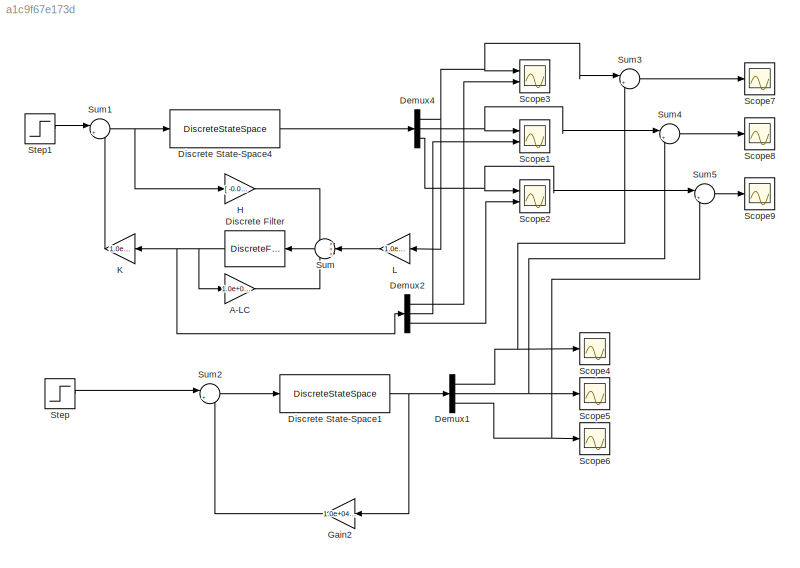
MODEL slx_a1c9f67e173d
KIND model
CONFIG AbsTol = auto
CONFIG EnableMultiTasking = off
CONFIG FixedStep = auto
CONFIG MaxStep = auto
CONFIG MinStep = auto
CONFIG RelTol = 1e-3
CONFIG SampleTimeConstraint = Unconstrained
CONFIG SolverName = VariableStepAuto
CONFIG StartTime = 0.0
CONFIG StopTime = 200
BLOCK [Gain] A-LC
  Gain = 1.0e+02 *[ -0.015127292849783  -0.211505575347728  -0.000006041895553\n ;  0.000737501490094   0.008824969025846   0.000000487045361\n;   2.852002205623906                   0   0.006302323823937]
  Multiplication = Matrix(K*u)
BLOCK [Demux] Demux1
  Outputs = 3
  Ports = [1, 3]
BLOCK [Demux] Demux2
  Outputs = 3
  Ports = [1, 3]
BLOCK [Demux] Demux4
  Outputs = 3
  Ports = [1, 3]
BLOCK [DiscreteFilter] Discrete Filter
  Denominator = [ 1 0]
  InputPortMap = u0
  Numerator = [0 1]
  Ports = [1, 1]
  SampleTime = 5
BLOCK [DiscreteStateSpace] Discrete State-Space1
  A = [ 1.000000000000000 -21.150557534772830  -0.000604189555321\n         ;          0   0.882496902584595   0.000048704536076\n          ;         0                   0   0.630232382393690]
  B = [  -0.000088014915701\n ;  0.000011188695469\n ;  0.333725286648294]
  C = [1 0 0; 0 1 0 ; 0 0 1]
  D = [0;0;0]
  InitialCondition = 10
  SampleTime = 5
BLOCK [DiscreteStateSpace] Discrete State-Space4
  A = [1.000000000000000 -21.150557534772830  -0.000604189555321\n       ;            0   0.882496902584595   0.000048704536076\n            ;       0                   0   0.630232382393690]
  B = [  -0.000088014915701\n ;  0.000011188695469\n ;  0.333725286648294]
  C = [1 0 0; 0 1 0 ; 0 0 1]
  D = [0;0;0]
  InitialCondition = 1
  SampleTime = 5
BLOCK [Gain] Gain2
  Gain = 1.0e+04 *[\n\n   -0.217959452645970  8.571244823702385  0.000408084742073]
  Multiplication = Matrix(K*u)
BLOCK [Gain] H
  Gain = [  -0.000088014915701\n ;  0.000011188695469\n  ; 0.333725286648294]
  Multiplication = Matrix(K*u)
BLOCK [Gain] K
  Gain = 1.0e+04 *[\n\n   0.217959452645970  -8.571244823702385  -0.000408084742073]
  Multiplication = Matrix(K*u)
BLOCK [Gain] L
  Gain = 1.0e+02 *[\n\n   0.025127292849783\n  -0.000737501490094\n  -2.852002205623906]
  Multiplication = Matrix(K*u)
BLOCK [Scope] Scope1
  Floating = off
  NumInputPorts = 2
  Ports = [2]
  ScopeSpecificationString = Simulink.scopes.TimeScopeBlockCfg('CurrentConfiguration', extmgr.ConfigurationSet(extmgr.Configuration('Core','General UI',true),extmgr.Configuration('Core','Source UI',true),extmgr.Configuration('Sources','WiredSimulink',true),extmgr.Configuration('Visuals','Time Domain',true,'SerializedDisplays',{struct('MinYLimReal','-2.95969','MaxYLimReal','2.25944','YLabelReal','','MinYLimMag','0.00000','MaxY...<+1367ch>
BLOCK [Scope] Scope2
  Floating = off
  NumInputPorts = 2
  Ports = [2]
  ScopeSpecificationString = Simulink.scopes.TimeScopeBlockCfg('CurrentConfiguration', extmgr.ConfigurationSet(extmgr.Configuration('Core','General UI',true),extmgr.Configuration('Core','Source UI',true),extmgr.Configuration('Sources','WiredSimulink',true,'DataLoggingVariableName','ScopeData1'),extmgr.Configuration('Visuals','Time Domain',true,'SerializedDisplays',{struct('MinYLimReal','-127908.24136','MaxYLimReal','145285.53...<+1445ch>
BLOCK [Scope] Scope3
  Floating = off
  NumInputPorts = 2
  Ports = [2]
  ScopeSpecificationString = Simulink.scopes.TimeScopeBlockCfg('CurrentConfiguration', extmgr.ConfigurationSet(extmgr.Configuration('Core','General UI',true),extmgr.Configuration('Core','Source UI',true),extmgr.Configuration('Sources','WiredSimulink',true,'DataLoggingVariableName','ScopeData2'),extmgr.Configuration('Visuals','Time Domain',true,'SerializedDisplays',{struct('MinYLimReal','-64.27986','MaxYLimReal','40.07317','YL...<+1413ch>
BLOCK [Scope] Scope4
  Floating = off
  NumInputPorts = 1
  Ports = [1]
  ScopeSpecificationString = Simulink.scopes.TimeScopeBlockCfg('CurrentConfiguration', extmgr.ConfigurationSet(extmgr.Configuration('Core','General UI',true),extmgr.Configuration('Core','Source UI',true),extmgr.Configuration('Sources','WiredSimulink',true,'DataLoggingVariableName','ScopeData1'),extmgr.Configuration('Visuals','Time Domain',true,'SerializedDisplays',{struct('MinYLimReal','-145.23509','MaxYLimReal','27.24834','Y...<+1379ch>
BLOCK [Scope] Scope5
  Floating = off
  NumInputPorts = 1
  Ports = [1]
  ScopeSpecificationString = Simulink.scopes.TimeScopeBlockCfg('CurrentConfiguration', extmgr.ConfigurationSet(extmgr.Configuration('Core','General UI',true),extmgr.Configuration('Core','Source UI',true),extmgr.Configuration('Sources','WiredSimulink',true,'DataLoggingVariableName','ScopeData2'),extmgr.Configuration('Visuals','Time Domain',true,'SerializedDisplays',{struct('MinYLimReal','-5.6715','MaxYLimReal','11.74128','YLab...<+1369ch>
BLOCK [Scope] Scope6
  Floating = off
  NumInputPorts = 1
  Ports = [1]
  ScopeSpecificationString = Simulink.scopes.TimeScopeBlockCfg('CurrentConfiguration', extmgr.ConfigurationSet(extmgr.Configuration('Core','General UI',true),extmgr.Configuration('Core','Source UI',true),extmgr.Configuration('Sources','WiredSimulink',true,'DataLoggingVariableName','ScopeData3'),extmgr.Configuration('Visuals','Time Domain',true,'SerializedDisplays',{struct('MinYLimReal','-329347.04403','MaxYLimReal','176351.01...<+1405ch>
BLOCK [Scope] Scope7
  Floating = off
  NumInputPorts = 1
  Ports = [1]
  ScopeSpecificationString = Simulink.scopes.TimeScopeBlockCfg('CurrentConfiguration', extmgr.ConfigurationSet(extmgr.Configuration('Core','General UI',true),extmgr.Configuration('Core','Source UI',true),extmgr.Configuration('Sources','WiredSimulink',true,'DataLoggingVariableName','ScopeData4'),extmgr.Configuration('Visuals','Time Domain',true,'SerializedDisplays',{struct('MinYLimReal','-52.70335','MaxYLimReal','125.67314','Y...<+1373ch>
BLOCK [Scope] Scope8
  Floating = off
  NumInputPorts = 1
  Ports = [1]
  ScopeSpecificationString = Simulink.scopes.TimeScopeBlockCfg('CurrentConfiguration', extmgr.ConfigurationSet(extmgr.Configuration('Core','General UI',true),extmgr.Configuration('Core','Source UI',true),extmgr.Configuration('Sources','WiredSimulink',true,'DataLoggingVariableName','ScopeData5'),extmgr.Configuration('Visuals','Time Domain',true,'SerializedDisplays',{struct('MinYLimReal','-10.73177','MaxYLimReal','6.5859','YLab...<+1365ch>
BLOCK [Scope] Scope9
  Floating = off
  NumInputPorts = 1
  Ports = [1]
  ScopeSpecificationString = Simulink.scopes.TimeScopeBlockCfg('CurrentConfiguration', extmgr.ConfigurationSet(extmgr.Configuration('Core','General UI',true),extmgr.Configuration('Core','Source UI',true),extmgr.Configuration('Sources','WiredSimulink',true,'DataLoggingVariableName','ScopeData6'),extmgr.Configuration('Visuals','Time Domain',true,'SerializedDisplays',{struct('MinYLimReal','-171484.5923','MaxYLimReal','328807.401...<+1399ch>
BLOCK [Step] Step
  SampleTime = 0
  Time = 0
BLOCK [Step] Step1
  SampleTime = 0
  Time = 0
BLOCK [Sum] Sum
  Inputs = +++
  Ports = [3, 1]
BLOCK [Sum] Sum1
  Inputs = |++
  Ports = [2, 1]
BLOCK [Sum] Sum2
  Inputs = |+-
  Ports = [2, 1]
BLOCK [Sum] Sum3
  Inputs = |+-
  Ports = [2, 1]
BLOCK [Sum] Sum4
  Inputs = |+-
  Ports = [2, 1]
BLOCK [Sum] Sum5
  Inputs = |+-
  Ports = [2, 1]
LINE A-LC:1 -> Sum:3
NET Demux1:1 -> Scope4:1, Sum3:2
NET Demux1:2 -> Scope5:1, Sum4:2
NET Demux1:3 -> Scope6:1, Sum5:2
LINE Demux2:1 -> Scope3:2
LINE Demux2:2 -> Scope1:2
LINE Demux2:3 -> Scope2:2
NET Demux4:1 -> L:1, Scope3:1, Sum3:1
NET Demux4:2 -> Scope1:1, Sum4:1
NET Demux4:3 -> Scope2:1, Sum5:1
NET Discrete Filter:1 -> A-LC:1, Demux2:1, K:1
NET Discrete State-Space1:1 -> Demux1:1, Gain2:1
LINE Discrete State-Space4:1 -> Demux4:1
LINE Gain2:1 -> Sum2:2
LINE H:1 -> Sum:1
LINE K:1 -> Sum1:2
LINE L:1 -> Sum:2
LINE Step1:1 -> Sum1:1
LINE Step:1 -> Sum2:1
NET Sum1:1 -> Discrete State-Space4:1, H:1
LINE Sum2:1 -> Discrete State-Space1:1
LINE Sum3:1 -> Scope7:1
LINE Sum4:1 -> Scope8:1
LINE Sum5:1 -> Scope9:1
LINE Sum:1 -> Discrete Filter:1
note: NET lines group one-source signal fan-out (src -> all destinations, sorted); 1:1 wires keep LINE
